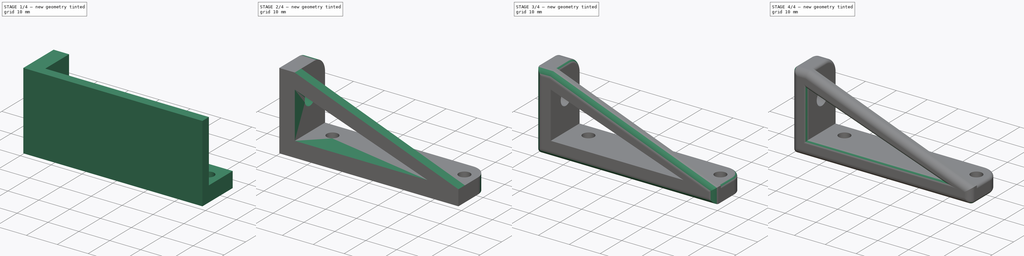
[diagram: build sequence overview — one tinted view per stage of 4, left to right]
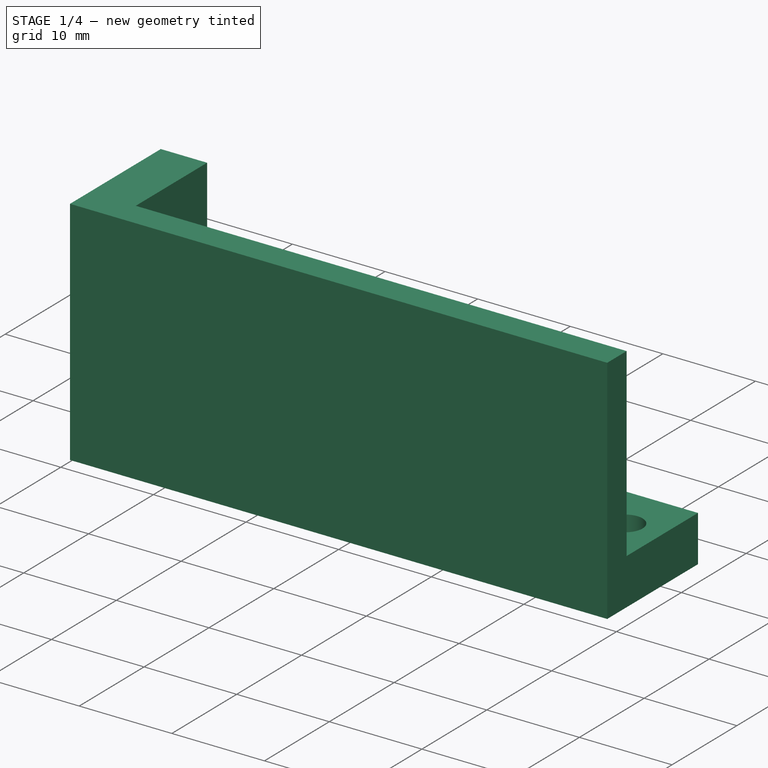
[diagram: stage 1 of 4 — iso view after this stage's code; geometry added in this stage tinted green]
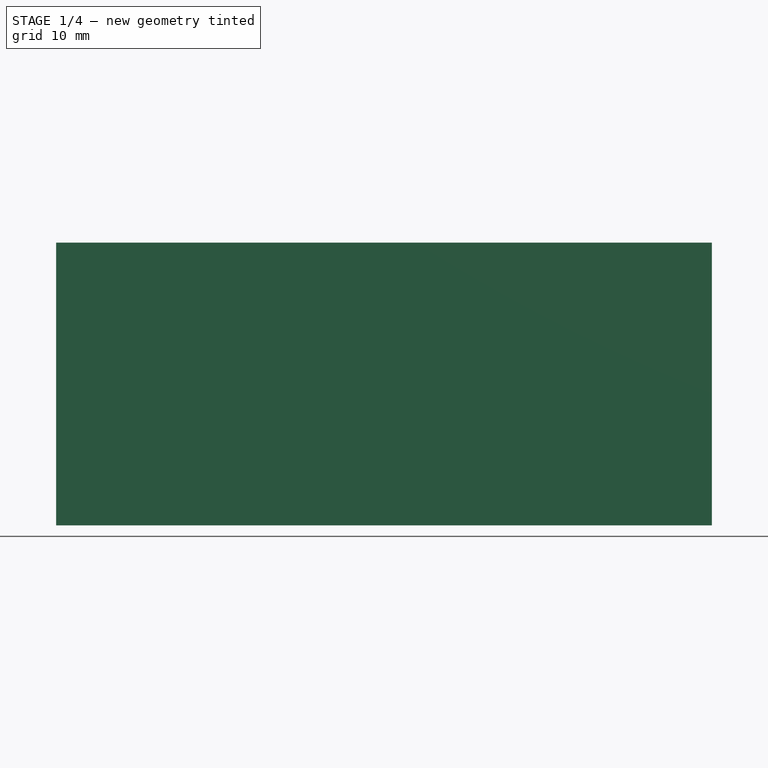
[diagram: stage 1 of 4 — front view after this stage's code; geometry added in this stage tinted green]
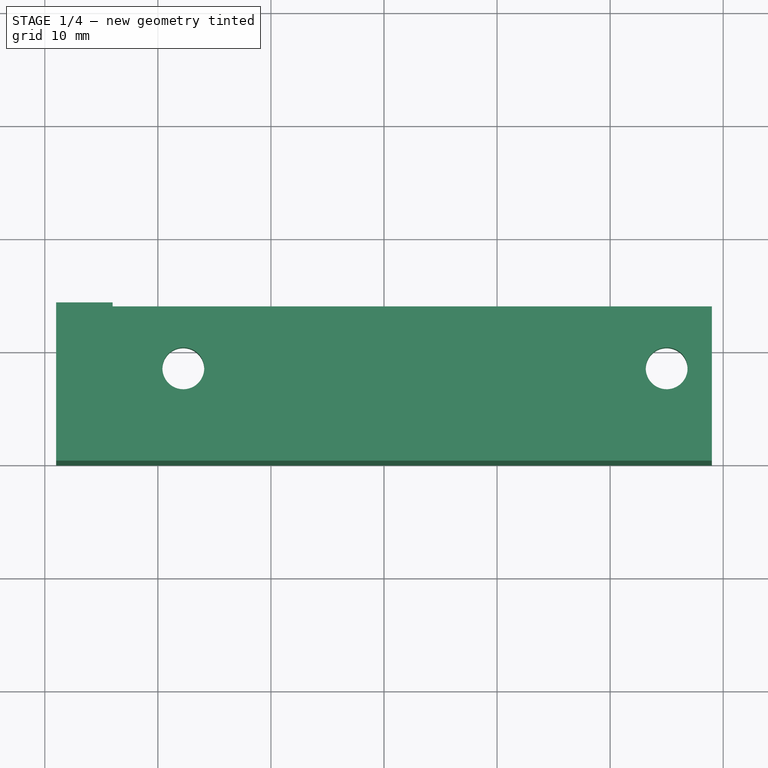
[diagram: stage 1 of 4 — top view after this stage's code; geometry added in this stage tinted green]
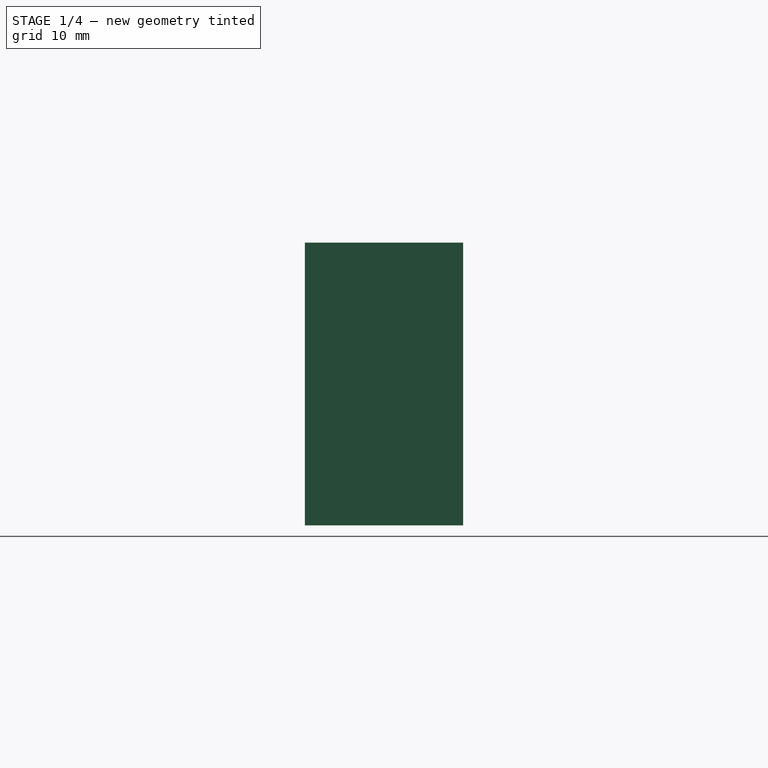
[diagram: stage 1 of 4 — right view after this stage's code; geometry added in this stage tinted green]
FCSTD DOCUMENT  (FreeCAD 0.16R6698 (Git))
Label: pnp axis 4 motor driver bracket
License: All rights reserved
LicenseURL: http://en.wikipedia.org/wiki/All_rights_reserved
objects: PartDesign::Fillet×8, Sketcher::SketchObject×5, PartDesign::Pocket×3, PartDesign::Pad×2
note: 23 computed .brp shape members not serialized (recipe doc carries the construction recipe); baked Part::Feature solids carry a one-line shape summary decoded from their .brp

FEATURE [Sketcher::SketchObject] Sketch
  sketch-geometry (4):
    g0: LineSegment StartX=-29 StartY=14 StartZ=0 EndX=29 EndY=14 EndZ=0
    g1: LineSegment StartX=29 StartY=14 StartZ=0 EndX=29 EndY=0 EndZ=0
    g2: LineSegment StartX=29 StartY=0 StartZ=0 EndX=-29 EndY=0 EndZ=0
    g3: LineSegment StartX=-29 StartY=0 StartZ=0 EndX=-29 EndY=14 EndZ=0
  constraints (11):
    c: Coincident(g0,g1)
    c: Coincident(g1,g2)
    c: Coincident(g2,g3)
    c: Coincident(g3,g0)
    c: Horizontal(g0)
    c: Horizontal(g2)
    c: Vertical(g1)
    c: Vertical(g3)
    c: DistanceX(g0,g0) = 58
    c: DistanceY(g3,g3) = 14
    c: Symmetric(g0,g0,g-2)
FEATURE [PartDesign::Pad] Pad
  Length = 5
  Length2 = 100
  Sketch = -> Sketch
  Type = 0
FEATURE [Sketcher::SketchObject] Sketch001
  Placement = pos=(0,0,5) rot=(0,0,1;0rad)
  Support = -> Pad [Face6]
  sketch-geometry (3):
    g0: Circle CenterX=-17.75 CenterY=8.51928 CenterZ=0 NormalX=0 NormalY=0 NormalZ=1 Radius=1.85
    g1: Circle CenterX=25 CenterY=8.51928 CenterZ=0 NormalX=0 NormalY=0 NormalZ=1 Radius=1.85
    g2: LineSegment [constr] StartX=-17.75 StartY=8.51928 StartZ=0 EndX=25 EndY=8.51928 EndZ=0
  constraints (6):
    c: Horizontal(g2)
    c: DistanceX(g2,g2) = 42.75
    c: Coincident(g2,g1)
    c: Coincident(g0,g2)
    c: Radius(g0) = 1.85
    c: Equal(g0,g1)
FEATURE [PartDesign::Pocket] Pocket
  Length = 5
  Sketch = -> Sketch001
  Type = 1
FEATURE [Sketcher::SketchObject] Sketch002
  Placement = pos=(0,0,5) rot=(0,0,1;0rad)
  Support = -> Pocket [Face5]
  sketch-geometry (6):
    g0: LineSegment StartX=-29 StartY=14 StartZ=0 EndX=-24 EndY=14 EndZ=0
    g1: LineSegment StartX=-24 StartY=14 StartZ=0 EndX=-24 EndY=3 EndZ=0
    g2: LineSegment StartX=-24 StartY=3 StartZ=0 EndX=29 EndY=3 EndZ=0
    g3: LineSegment StartX=29 StartY=3 StartZ=0 EndX=29 EndY=0 EndZ=0
    g4: LineSegment StartX=29 StartY=0 StartZ=0 EndX=-29 EndY=0 EndZ=0
    g5: LineSegment StartX=-29 StartY=0 StartZ=0 EndX=-29 EndY=14 EndZ=0
  constraints (13):
    c: Horizontal(g0)
    c: Coincident(g0,g1)
    c: Vertical(g1)
    c: Coincident(g1,g2)
    c: Horizontal(g2)
    c: Coincident(g2,g3)
    c: PointOnObject(g3,g-1)
    c: Vertical(g3)
    c: Coincident(g3,g4)
    c: PointOnObject(g4,g-1)
    c: Coincident(g4,g5)
    c: Coincident(g5,g0)
    c: Vertical(g5)
FEATURE [PartDesign::Pad] Pad001
  Length = 20
  Length2 = 100
  Sketch = -> Sketch002
  Type = 0
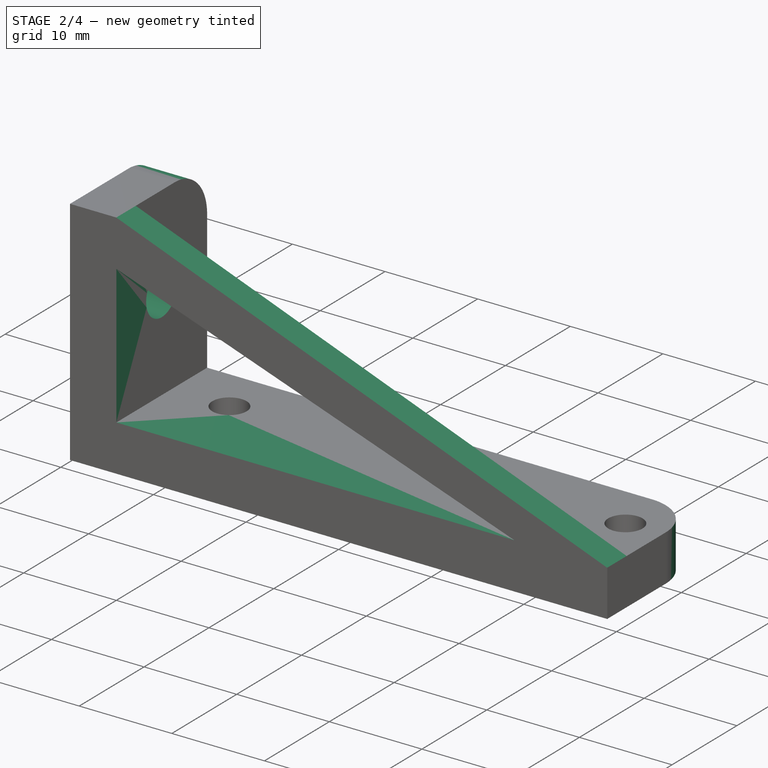
[diagram: stage 2 of 4 — iso view after this stage's code; geometry added in this stage tinted green]
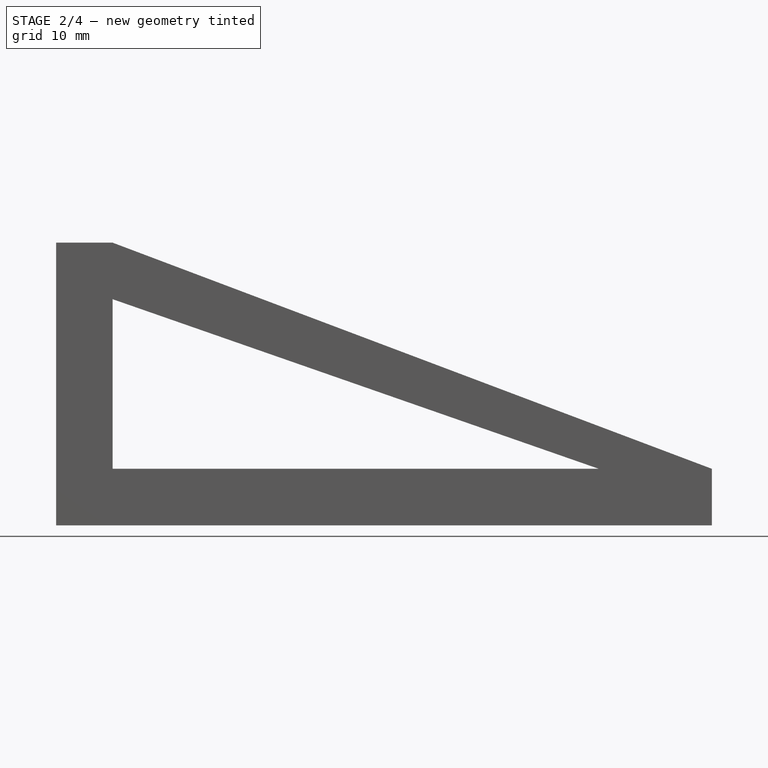
[diagram: stage 2 of 4 — front view after this stage's code; geometry added in this stage tinted green]
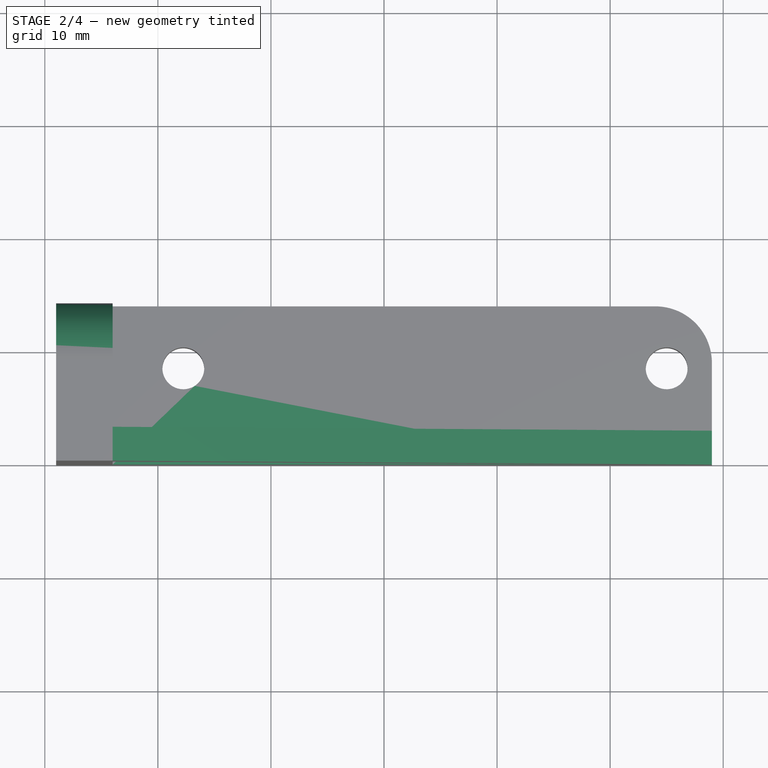
[diagram: stage 2 of 4 — top view after this stage's code; geometry added in this stage tinted green]
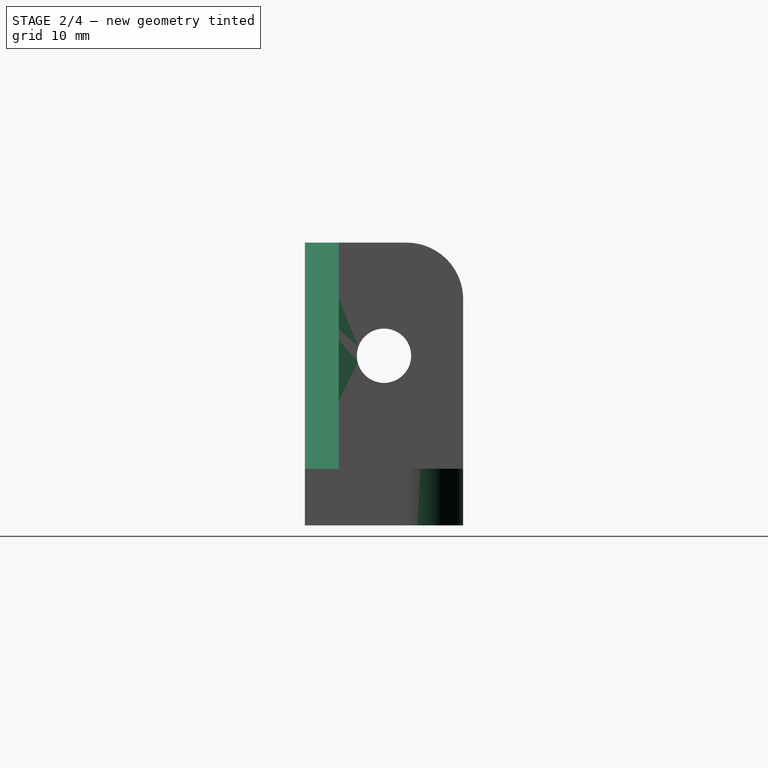
[diagram: stage 2 of 4 — right view after this stage's code; geometry added in this stage tinted green]
FEATURE [Sketcher::SketchObject] Sketch003
  Placement = pos=(-29,0,0) rot=(0.57735,-0.57735,-0.57735;2.0944rad)
  Support = -> Pad001 [Face9]
  sketch-geometry (1):
    g0: Circle CenterX=-7 CenterY=15 CenterZ=0 NormalX=0 NormalY=0 NormalZ=1 Radius=2.4
  constraints (1):
    c: Radius(g0) = 2.4
FEATURE [PartDesign::Pocket] Pocket001
  Length = 5
  Sketch = -> Sketch003
  Type = 2
FEATURE [Sketcher::SketchObject] Sketch004
  Placement = pos=(0,0,0) rot=(1,0,0;1.5708rad)
  Support = -> Pocket001 [Face5]
  sketch-geometry (6):
    g0: LineSegment StartX=-24 StartY=25 StartZ=0 EndX=29 EndY=5 EndZ=0
    g1: LineSegment StartX=29 StartY=5 StartZ=0 EndX=29 EndY=25 EndZ=0
    g2: LineSegment StartX=29 StartY=25 StartZ=0 EndX=-24 EndY=25 EndZ=0
    g3: LineSegment StartX=-24 StartY=20 StartZ=0 EndX=19 EndY=5 EndZ=0
    g4: LineSegment StartX=19 StartY=5 StartZ=0 EndX=-24 EndY=5 EndZ=0
    g5: LineSegment StartX=-24 StartY=5 StartZ=0 EndX=-24 EndY=20 EndZ=0
  constraints (10):
    c: Coincident(g0,g1)
    c: Vertical(g1)
    c: Coincident(g1,g2)
    c: Coincident(g2,g0)
    c: Horizontal(g2)
    c: Coincident(g3,g4)
    c: Horizontal(g4)
    c: Coincident(g4,g5)
    c: Coincident(g5,g3)
    c: Vertical(g5)
FEATURE [PartDesign::Pocket] Pocket002
  Length = 5
  Sketch = -> Sketch004
  Type = 0
FEATURE [PartDesign::Fillet] Fillet
  Base = -> Pocket002 [Edge8,Edge11]
  Radius = 5
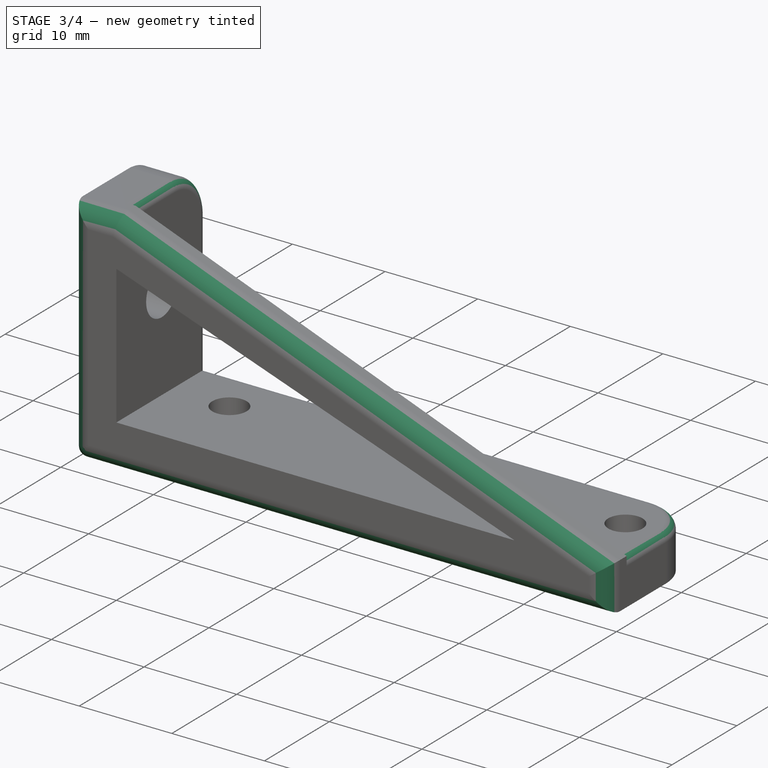
[diagram: stage 3 of 4 — iso view after this stage's code; geometry added in this stage tinted green]
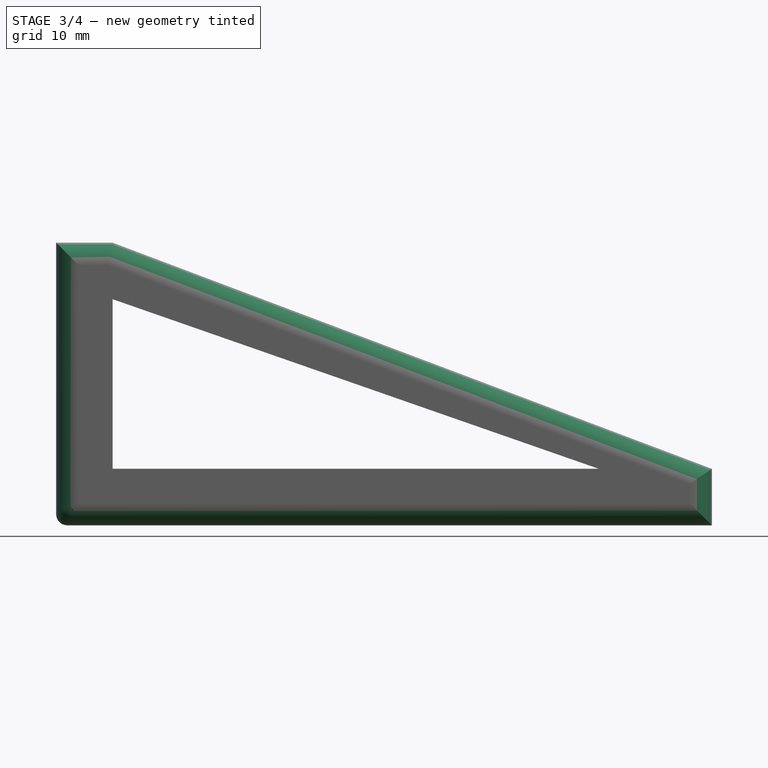
[diagram: stage 3 of 4 — front view after this stage's code; geometry added in this stage tinted green]
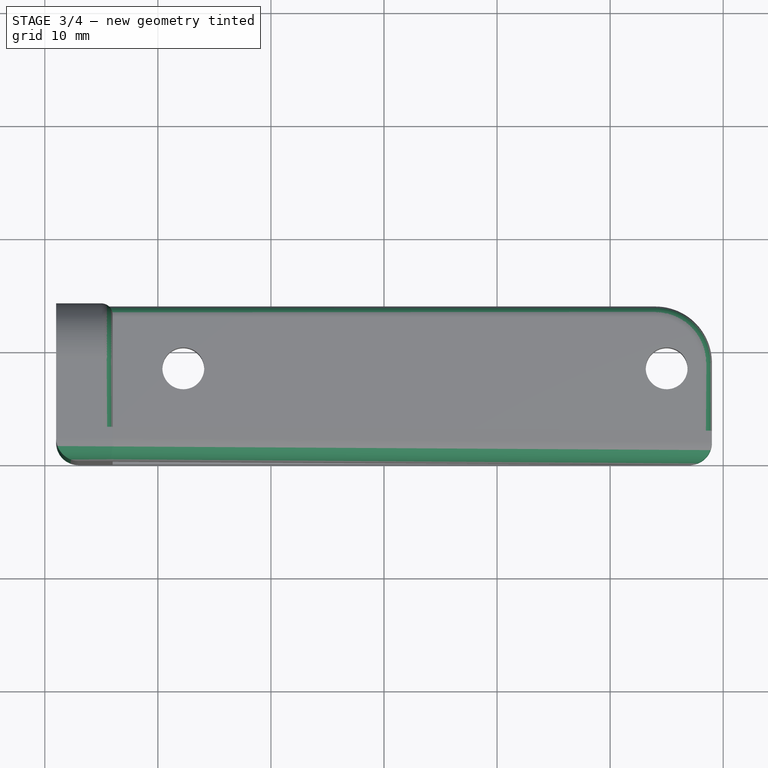
[diagram: stage 3 of 4 — top view after this stage's code; geometry added in this stage tinted green]
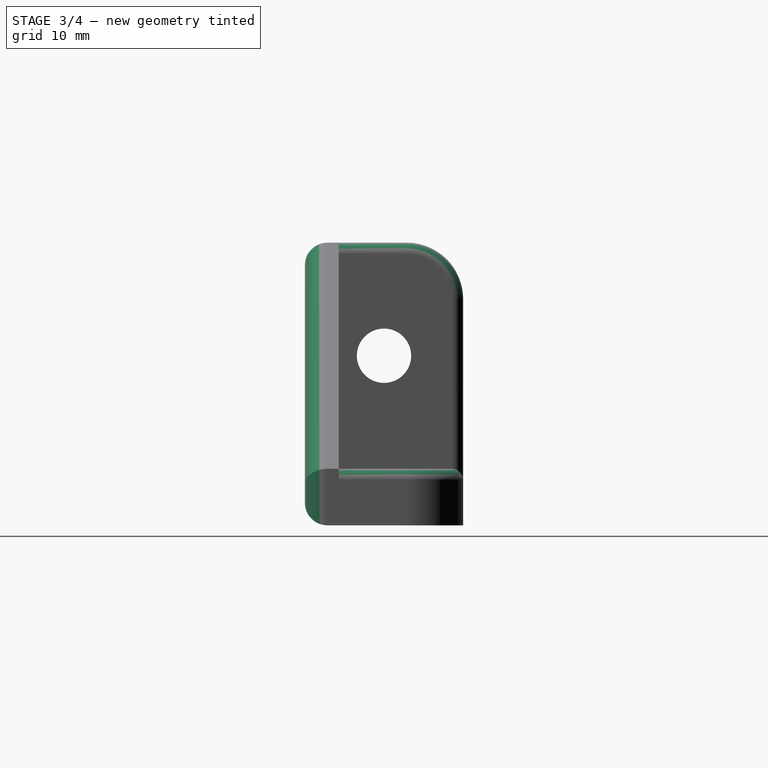
[diagram: stage 3 of 4 — right view after this stage's code; geometry added in this stage tinted green]
FEATURE [PartDesign::Fillet] Fillet001
  Base = -> Fillet [Edge5,Edge17,Edge23,Edge22,Edge21]
  Radius = 2
FEATURE [PartDesign::Fillet] Fillet002
  Base = -> Fillet001 [Edge1]
  Radius = 2
FEATURE [PartDesign::Fillet] Fillet003
  Base = -> Fillet002 [Edge22]
  Radius = 1
FEATURE [PartDesign::Fillet] Fillet004
  Base = -> Fillet003 [Edge30]
  Radius = 1
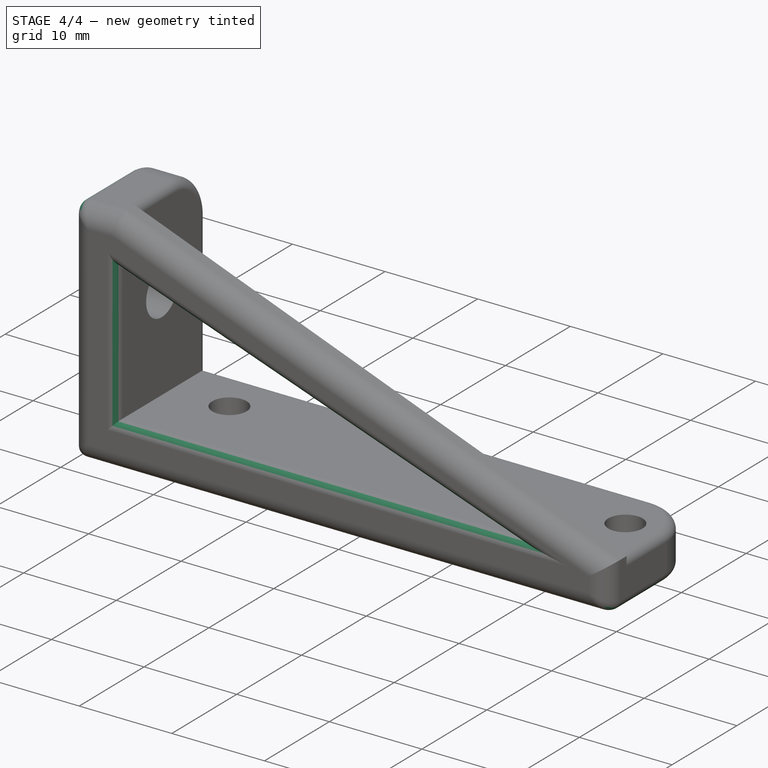
[diagram: stage 4 of 4 — iso view after this stage's code; geometry added in this stage tinted green]
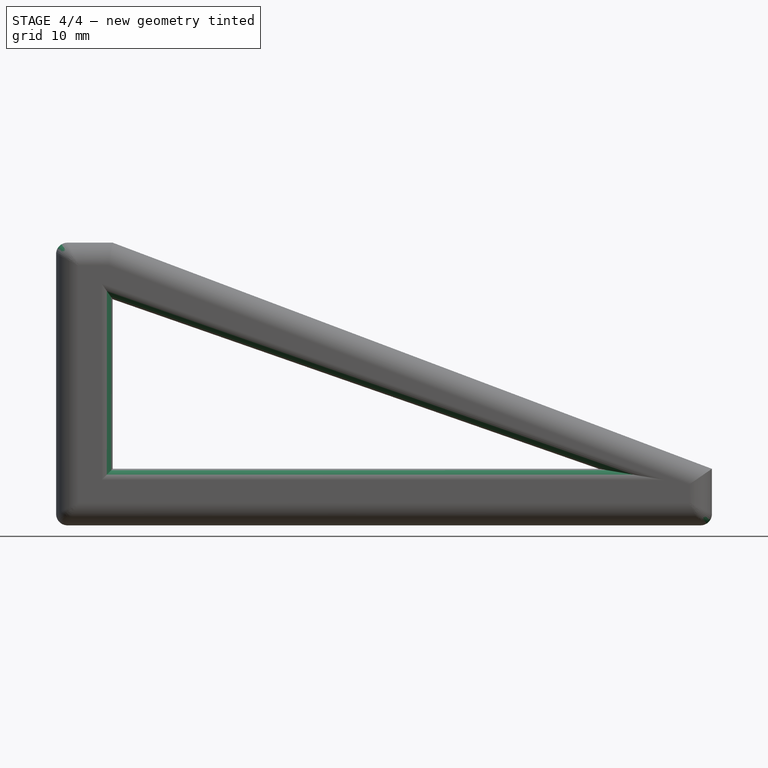
[diagram: stage 4 of 4 — front view after this stage's code; geometry added in this stage tinted green]
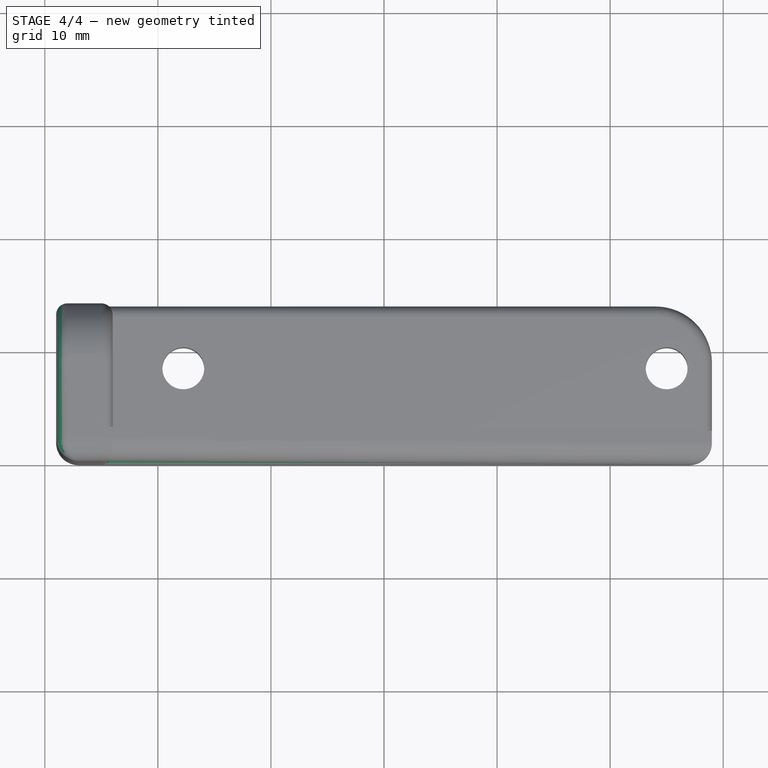
[diagram: stage 4 of 4 — top view after this stage's code; geometry added in this stage tinted green]
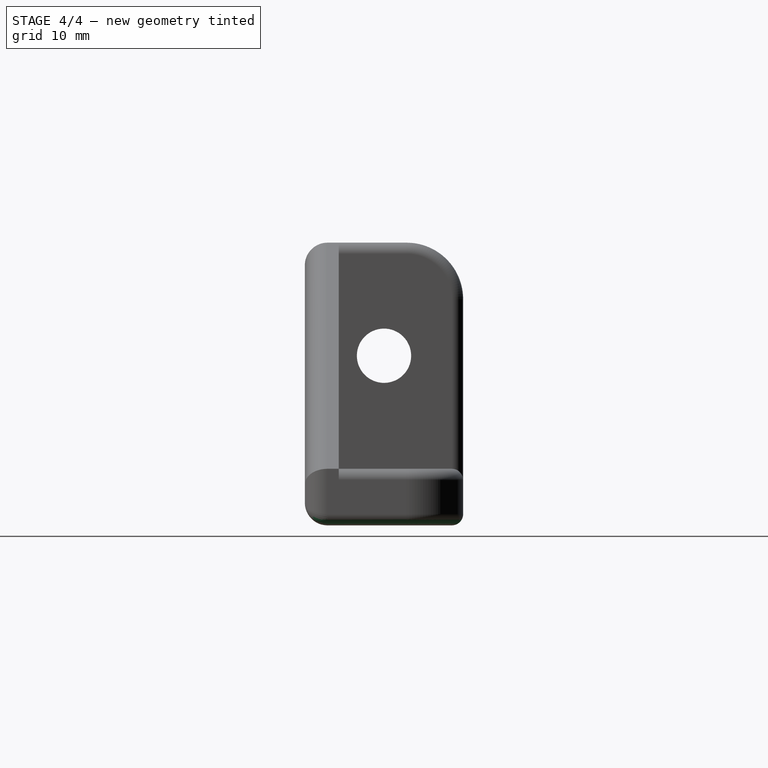
[diagram: stage 4 of 4 — right view after this stage's code; geometry added in this stage tinted green]
FEATURE [PartDesign::Fillet] Fillet005
  Base = -> Fillet004 [Edge27,Edge20,Edge12]
  Radius = 1
FEATURE [PartDesign::Fillet] Fillet006
  Base = -> Fillet005 [Edge13]
  Radius = 1
FEATURE [PartDesign::Fillet] Fillet007
  Base = -> Fillet006 [Edge73]
  Radius = 1
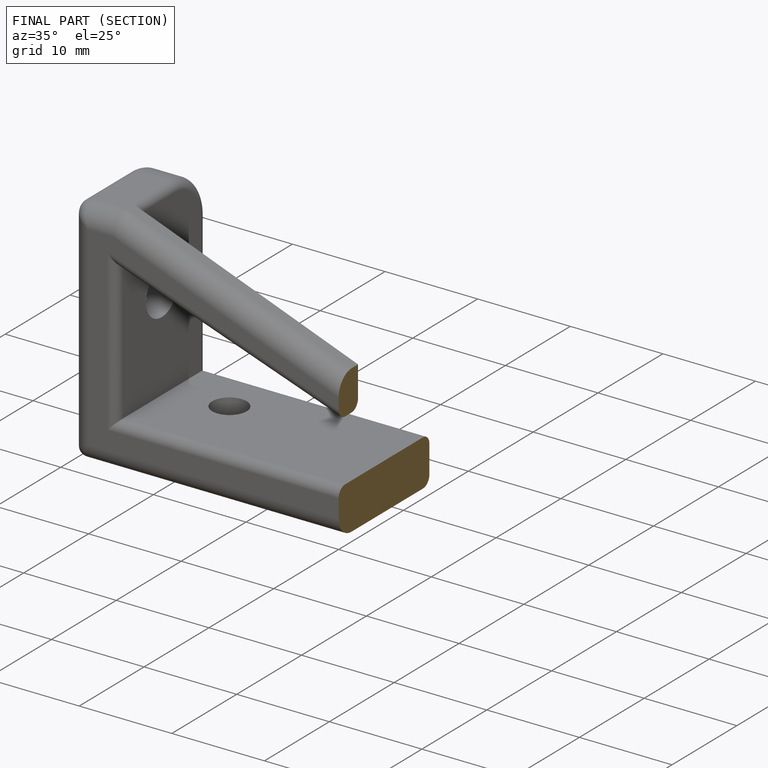
[diagram: finished part — half-section view (interior)]
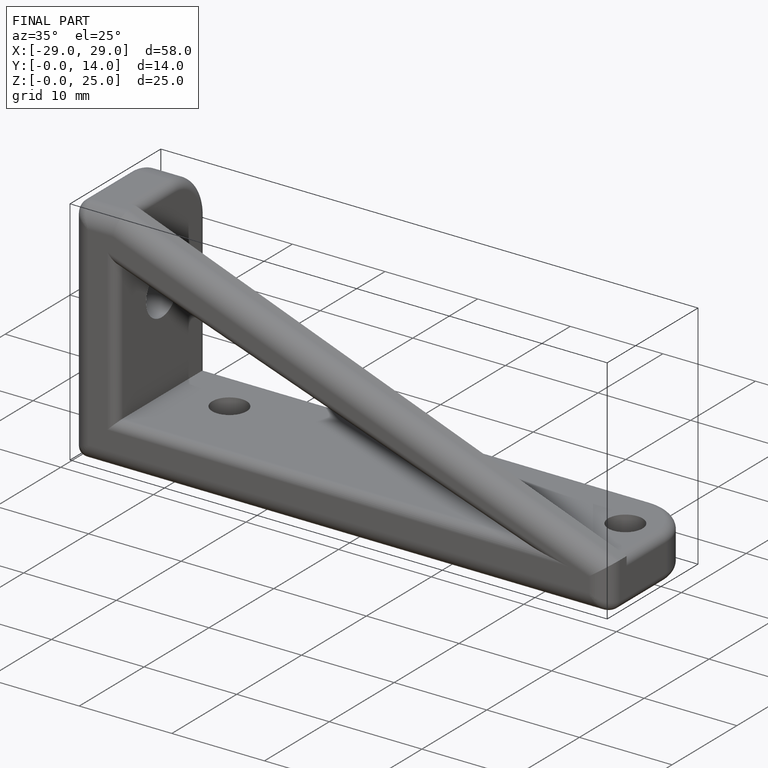
[diagram: finished part — iso view with bounding-box wireframe]
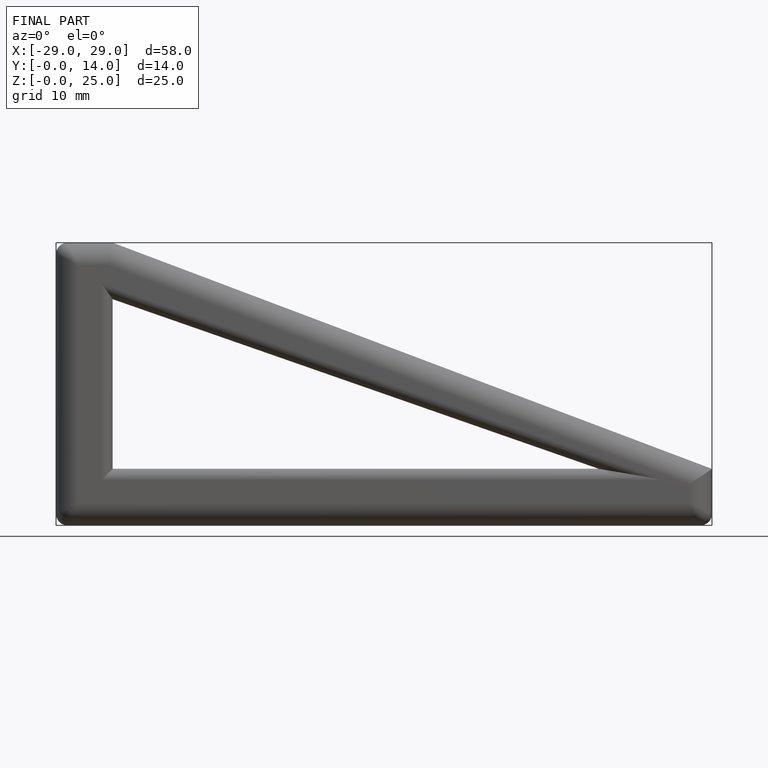
[diagram: finished part — front view with bounding-box wireframe]
